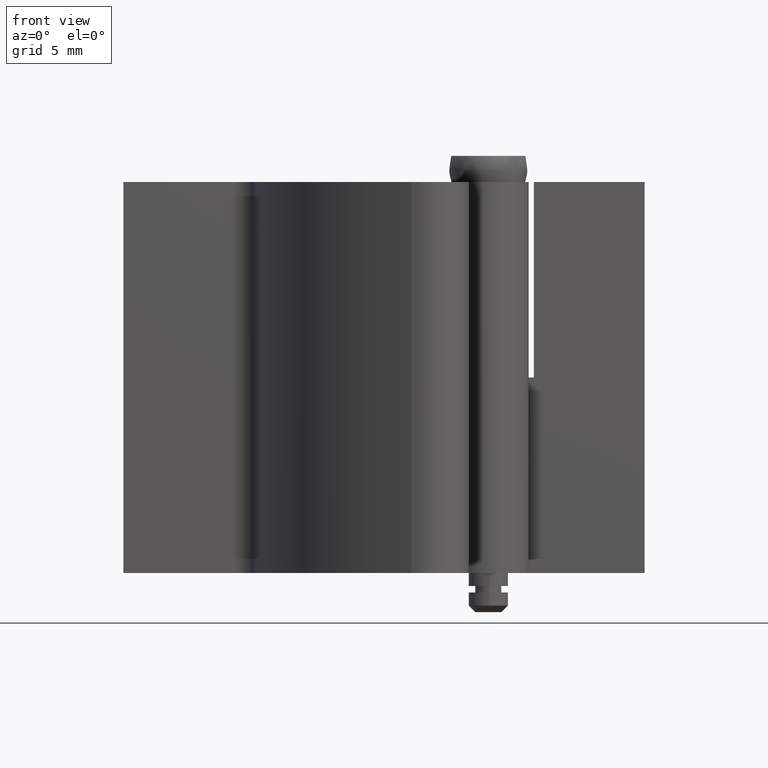
[diagram: clean part render]
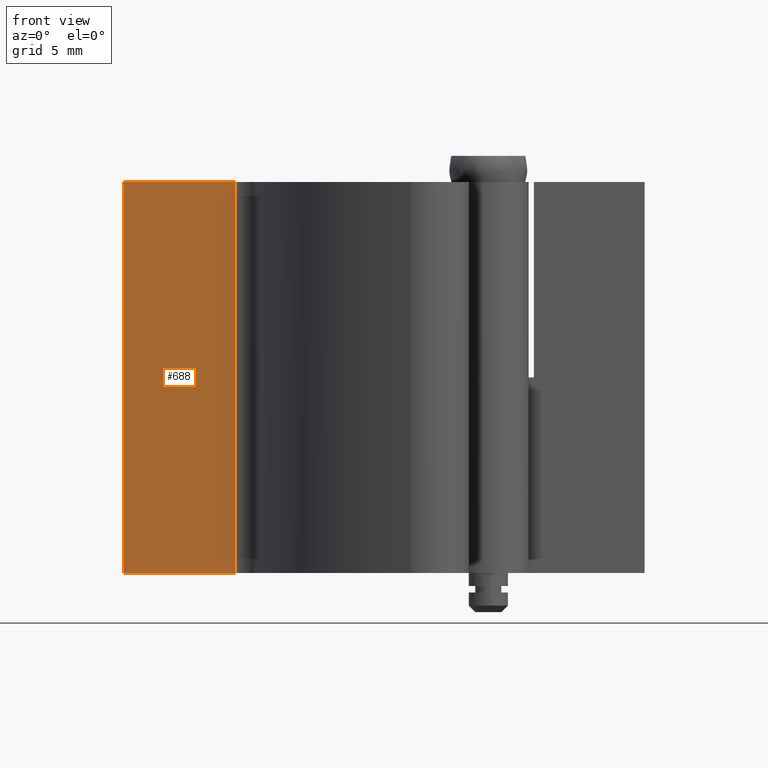
[diagram: same view with one face highlighted and labeled with its STEP entity id]
A machine part, front view. The second image highlights one B-rep face of the part: STEP entity #688.
In plain terms, the highlighted face is a freeform B-spline surface patch.
Its self-contained STEP definition (entity closure, byte-faithful):
#202=CARTESIAN_POINT('',(-19.395583999999999,1.500000000000000,3.0));
#203=VERTEX_POINT('',#202);
#217=CARTESIAN_POINT('',(-28.0,1.500000000000000,3.0));
#218=VERTEX_POINT('',#217);
#219=CARTESIAN_POINT('',(-28.0,1.500000000000000,3.0));
#220=CARTESIAN_POINT('',(-19.395583999999999,1.500000000000000,3.0));
#221=QUASI_UNIFORM_CURVE('',1,(#219,#220),.UNSPECIFIED.,.F.,.U.);
#222=EDGE_CURVE('',#218,#203,#221,.T.);
#307=CARTESIAN_POINT('',(-28.0,1.500000000000000,33.000008000000037));
#308=VERTEX_POINT('',#307);
#314=CARTESIAN_POINT('',(-19.395583999999999,1.500000000000000,33.000008000000037));
#315=VERTEX_POINT('',#314);
#316=CARTESIAN_POINT('',(-28.0,1.500000000000000,33.000008000000037));
#317=CARTESIAN_POINT('',(-19.395583999999999,1.500000000000000,33.000008000000037));
#318=QUASI_UNIFORM_CURVE('',1,(#316,#317),.UNSPECIFIED.,.F.,.U.);
#319=EDGE_CURVE('',#308,#315,#318,.T.);
#665=CARTESIAN_POINT('',(-19.395583999999999,1.500000000000000,33.000008000000037));
#666=CARTESIAN_POINT('',(-19.395583999999999,1.500000000000000,3.0));
#667=QUASI_UNIFORM_CURVE('',1,(#665,#666),.UNSPECIFIED.,.F.,.U.);
#668=EDGE_CURVE('',#315,#203,#667,.T.);
#673=CARTESIAN_POINT('',(-28.429790531781961,1.500000000000000,34.498508059835608));
#674=CARTESIAN_POINT('',(-28.429790531781961,1.500000000000000,1.501498867280554));
#675=CARTESIAN_POINT('',(-18.965793852865410,1.500000000000000,34.498508059835608));
#676=CARTESIAN_POINT('',(-18.965793852865410,1.500000000000000,1.501498867280554));
#677=B_SPLINE_SURFACE_WITH_KNOTS('',1,1,((#673,#675),(#674,#676)),.UNSPECIFIED.,.F.,.F.,.U.,(2,2),(2,2),(0.0,32.997009192555062),(0.0,9.463996678916548),.UNSPECIFIED.);
#678=ORIENTED_EDGE('',*,*,#222,.T.);
#679=ORIENTED_EDGE('',*,*,#668,.F.);
#680=ORIENTED_EDGE('',*,*,#319,.F.);
#681=CARTESIAN_POINT('',(-28.0,1.500000000000000,33.000008000000037));
#682=CARTESIAN_POINT('',(-28.0,1.500000000000000,3.0));
#683=QUASI_UNIFORM_CURVE('',1,(#681,#682),.UNSPECIFIED.,.F.,.U.);
#684=EDGE_CURVE('',#308,#218,#683,.T.);
#685=ORIENTED_EDGE('',*,*,#684,.T.);
#686=EDGE_LOOP('',(#678,#679,#680,#685));
#687=FACE_OUTER_BOUND('',#686,.T.);
#688=ADVANCED_FACE('',(#687),#677,.T.);